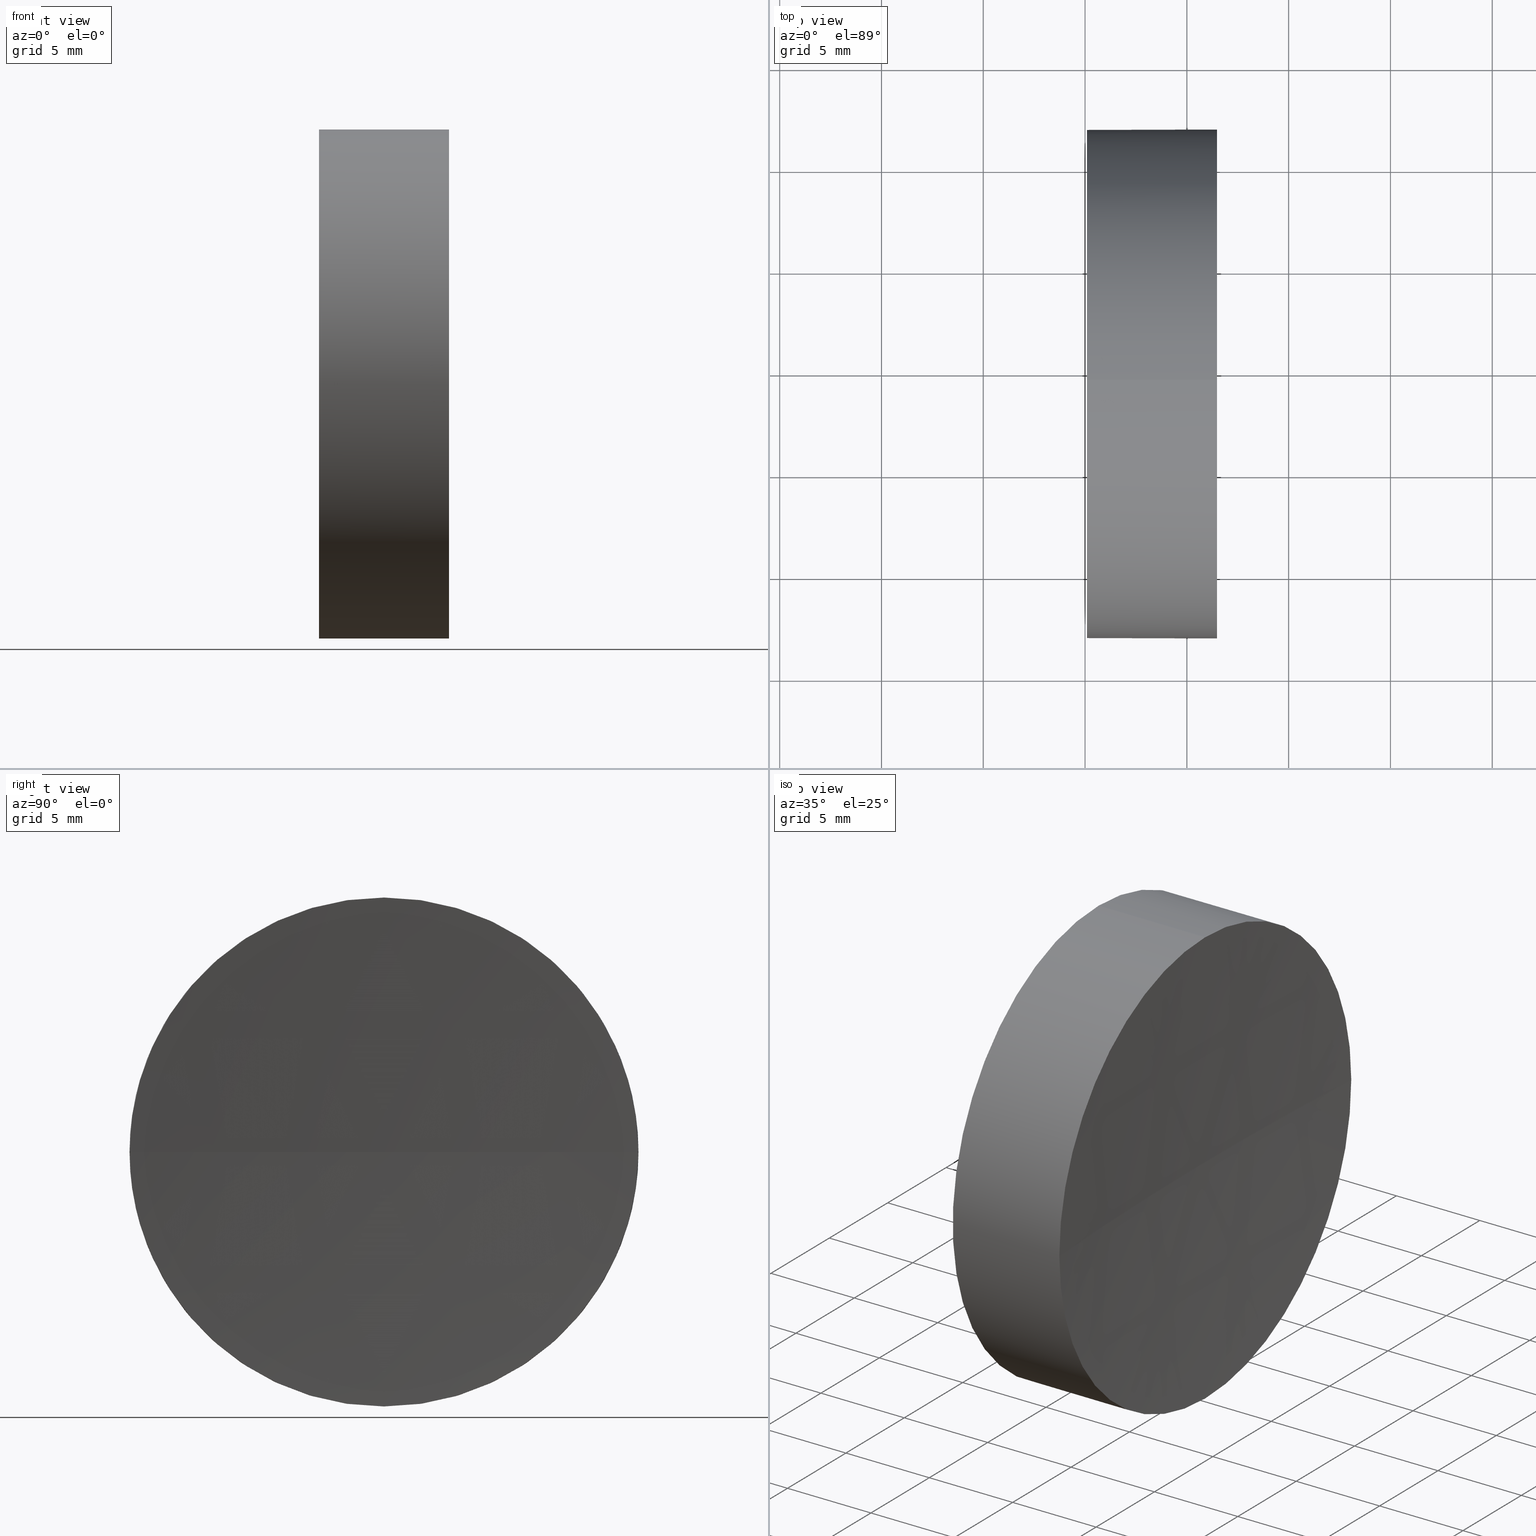
[diagram: canonical four-view strip — front | top / right | iso, engineering-drawing reading convention]
A machine part, canonical four-view strip (front | top / right | iso — engineering-drawing reading convention). The complete STEP part file that produces these views, byte-faithful:
ISO-10303-21;
HEADER;
FILE_DESCRIPTION (( 'STEP AP214' ),
    '1' );
FILE_NAME ('270027.STEP',
    '2019-07-22T07:16:51',
    ( '' ),
    ( '' ),
    'SwSTEP 2.0',
    'SolidWorks 2016',
    '' );
FILE_SCHEMA (( 'AUTOMOTIVE_DESIGN' ));
ENDSEC;

DATA;
#1 = AXIS2_PLACEMENT_3D ( 'NONE', #147, #59, #15 ) ;
#2 = CIRCLE ( 'NONE', #115, 12.50000000000002500 ) ;
#3 = APPLICATION_CONTEXT ( 'automotive_design' ) ;
#4 = SPHERICAL_SURFACE ( 'NONE', #62, 200.0000000000000000 ) ;
#5 = UNCERTAINTY_MEASURE_WITH_UNIT (LENGTH_MEASURE( 1.000000000000000100E-005 ), #73, 'distance_accuracy_value', 'NONE');
#6 = AXIS2_PLACEMENT_3D ( 'NONE', #44, #25, #159 ) ;
#7 = CARTESIAN_POINT ( 'NONE',  ( 115.0926555349195200, 69.37802112337243400, 0.0000000000000000000 ) ) ;
#8 = FACE_OUTER_BOUND ( 'NONE', #139, .T. ) ;
#9 = VERTEX_POINT ( 'NONE', #94 ) ;
#10 =( GEOMETRIC_REPRESENTATION_CONTEXT ( 3 ) GLOBAL_UNCERTAINTY_ASSIGNED_CONTEXT ( ( #108 ) ) GLOBAL_UNIT_ASSIGNED_CONTEXT ( ( #185, #81, #106 ) ) REPRESENTATION_CONTEXT ( 'NONE', 'WORKASPACE' ) );
#11 = DIRECTION ( 'NONE',  ( 0.0000000000000000000, 0.0000000000000000000, 1.000000000000000000 ) ) ;
#12 = PRESENTATION_STYLE_ASSIGNMENT (( #88 ) ) ;
#13 = VERTEX_POINT ( 'NONE', #40 ) ;
#14 = AXIS2_PLACEMENT_3D ( 'NONE', #112, #156, #129 ) ;
#15 = DIRECTION ( 'NONE',  ( 1.000000000000000000, 0.0000000000000000000, 0.0000000000000000000 ) ) ;
#16 = PRODUCT_CONTEXT ( 'NONE', #174, 'mechanical' ) ;
#17 = DIRECTION ( 'NONE',  ( 0.0000000000000000000, 0.0000000000000000000, -1.000000000000000000 ) ) ;
#18 = EDGE_CURVE ( 'NONE', #39, #109, #119, .T. ) ;
#19 = DIRECTION ( 'NONE',  ( 0.0000000000000000000, 0.0000000000000000000, 1.000000000000000000 ) ) ;
#20 = PRODUCT_RELATED_PRODUCT_CATEGORY ( 'part', '', ( #127 ) ) ;
#21 = EDGE_LOOP ( 'NONE', ( #157, #151, #180, #184 ) ) ;
#22 = CARTESIAN_POINT ( 'NONE',  ( 321.0926543351062000, 69.37802112337263300, 0.0000000000000000000 ) ) ;
#23 = AXIS2_PLACEMENT_3D ( 'NONE', #166, #103, #19 ) ;
#24 = SPHERICAL_SURFACE ( 'NONE', #92, 200.0000000000000000 ) ;
#25 = DIRECTION ( 'NONE',  ( 0.0000000000000000000, -1.224646799147353200E-016, 1.000000000000000000 ) ) ;
#26 = PRODUCT_DEFINITION ( 'δ֪', '', #181, #93 ) ;
#27 = EDGE_CURVE ( 'NONE', #54, #122, #82, .T. ) ;
#28 = DIRECTION ( 'NONE',  ( 0.0000000000000000000, 0.0000000000000000000, 1.000000000000000000 ) ) ;
#29 = CIRCLE ( 'NONE', #23, 12.50000000000002500 ) ;
#30 =( NAMED_UNIT ( * ) PLANE_ANGLE_UNIT ( ) SI_UNIT ( $, .RADIAN. ) );
#31 = FACE_OUTER_BOUND ( 'NONE', #68, .T. ) ;
#32 = EDGE_CURVE ( 'NONE', #9, #13, #2, .T. ) ;
#33 = CARTESIAN_POINT ( 'NONE',  ( 115.0926555349195200, 69.37802112337243400, -12.49999999999999600 ) ) ;
#34 = ADVANCED_FACE ( 'NONE', ( #8 ), #162, .T. ) ;
#35 = CARTESIAN_POINT ( 'NONE',  ( 321.0926543351062000, 69.37802112337263300, 0.0000000000000000000 ) ) ;
#36 = VECTOR ( 'NONE', #178, 1000.000000000000000 ) ;
#37 = SURFACE_SIDE_STYLE ('',( #98 ) ) ;
#38 = AXIS2_PLACEMENT_3D ( 'NONE', #182, #152, #80 ) ;
#39 = VERTEX_POINT ( 'NONE', #69 ) ;
#40 = CARTESIAN_POINT ( 'NONE',  ( 121.4836615517148000, 56.87802112337231400, 0.0000000000000000000 ) ) ;
#41 = VECTOR ( 'NONE', #84, 1000.000000000000000 ) ;
#42 = DIRECTION ( 'NONE',  ( -1.000000000000000000, -0.0000000000000000000, -0.0000000000000000000 ) ) ;
#43 = CARTESIAN_POINT ( 'NONE',  ( 121.0926543351061900, 69.37802112337261900, 0.0000000000000000000 ) ) ;
#44 = CARTESIAN_POINT ( 'NONE',  ( 321.0926543351062000, 69.37802112337263300, 0.0000000000000000000 ) ) ;
#45 = AXIS2_PLACEMENT_3D ( 'NONE', #125, #183, #11 ) ;
#46 = APPLICATION_PROTOCOL_DEFINITION ( 'draft international standard', 'automotive_design', 1998, #174 ) ;
#47 =( NAMED_UNIT ( * ) SI_UNIT ( $, .STERADIAN. ) SOLID_ANGLE_UNIT ( ) );
#48 = ORIENTED_EDGE ( 'NONE', *, *, #99, .F. ) ;
#49 = EDGE_LOOP ( 'NONE', ( #95, #116 ) ) ;
#50 = DIRECTION ( 'NONE',  ( 0.0000000000000000000, 0.0000000000000000000, 1.000000000000000000 ) ) ;
#51 =( GEOMETRIC_REPRESENTATION_CONTEXT ( 3 ) GLOBAL_UNCERTAINTY_ASSIGNED_CONTEXT ( ( #5 ) ) GLOBAL_UNIT_ASSIGNED_CONTEXT ( ( #73, #118, #150 ) ) REPRESENTATION_CONTEXT ( 'NONE', 'WORKASPACE' ) );
#52 = ADVANCED_FACE ( 'NONE', ( #77 ), #24, .F. ) ;
#53 = UNCERTAINTY_MEASURE_WITH_UNIT (LENGTH_MEASURE( 1.000000000000000100E-005 ), #131, 'distance_accuracy_value', 'NONE');
#54 = VERTEX_POINT ( 'NONE', #186 ) ;
#55 = CIRCLE ( 'NONE', #38, 12.49999999999999600 ) ;
#56 = DIRECTION ( 'NONE',  ( -1.000000000000000000, -0.0000000000000000000, -0.0000000000000000000 ) ) ;
#57 = FILL_AREA_STYLE_COLOUR ( '', #158 ) ;
#58 = EDGE_CURVE ( 'NONE', #122, #74, #134, .T. ) ;
#59 = DIRECTION ( 'NONE',  ( 0.0000000000000000000, 0.0000000000000000000, 1.000000000000000000 ) ) ;
#60 = ORIENTED_EDGE ( 'NONE', *, *, #78, .T. ) ;
#61 = PRESENTATION_STYLE_ASSIGNMENT (( #167 ) ) ;
#62 = AXIS2_PLACEMENT_3D ( 'NONE', #35, #90, #165 ) ;
#63 = ADVANCED_FACE ( 'NONE', ( #31 ), #105, .T. ) ;
#64 = CLOSED_SHELL ( 'NONE', ( #34, #52, #79, #63, #104 ) ) ;
#65 = CARTESIAN_POINT ( 'NONE',  ( 121.4836615517148000, 81.87802112337274700, 1.530808498934207300E-015 ) ) ;
#66 = EDGE_CURVE ( 'NONE', #54, #39, #154, .T. ) ;
#67 = ORIENTED_EDGE ( 'NONE', *, *, #58, .F. ) ;
#68 = EDGE_LOOP ( 'NONE', ( #48, #168, #89, #148, #142 ) ) ;
#69 = CARTESIAN_POINT ( 'NONE',  ( 115.0926555349195200, 69.37802112337243400, 12.49999999999999600 ) ) ;
#70 = CARTESIAN_POINT ( 'NONE',  ( 108.9851430021651000, 69.37802112337243400, 12.50000000000001100 ) ) ;
#71 = EDGE_LOOP ( 'NONE', ( #67, #176, #163, #149 ) ) ;
#72 = AXIS2_PLACEMENT_3D ( 'NONE', #22, #17, #173 ) ;
#73 =( LENGTH_UNIT ( ) NAMED_UNIT ( * ) SI_UNIT ( .MILLI., .METRE. ) );
#74 = VERTEX_POINT ( 'NONE', #43 ) ;
#75 = STYLED_ITEM ( 'NONE', ( #61 ), #179 ) ;
#76 = CARTESIAN_POINT ( 'NONE',  ( 108.9851430021651000, 69.37802112337243400, -12.50000000000001100 ) ) ;
#77 = FACE_OUTER_BOUND ( 'NONE', #21, .T. ) ;
#78 = EDGE_CURVE ( 'NONE', #122, #9, #29, .T. ) ;
#79 = ADVANCED_FACE ( 'NONE', ( #102 ), #4, .F. ) ;
#80 = DIRECTION ( 'NONE',  ( 0.0000000000000000000, 0.0000000000000000000, 1.000000000000000000 ) ) ;
#81 =( NAMED_UNIT ( * ) PLANE_ANGLE_UNIT ( ) SI_UNIT ( $, .RADIAN. ) );
#82 = CIRCLE ( 'NONE', #110, 12.50000000000002500 ) ;
#83 = MECHANICAL_DESIGN_GEOMETRIC_PRESENTATION_REPRESENTATION (  '', ( #75 ), #10 ) ;
#84 = DIRECTION ( 'NONE',  ( -1.000000000000000000, -0.0000000000000000000, -0.0000000000000000000 ) ) ;
#85 = AXIS2_PLACEMENT_3D ( 'NONE', #170, #42, #169 ) ;
#86 = FILL_AREA_STYLE ('',( #57 ) ) ;
#87 = COLOUR_RGB ( '',1.000000000000000000, 1.000000000000000000, 1.000000000000000000 ) ;
#88 = SURFACE_STYLE_USAGE ( .BOTH. , #160 ) ;
#89 = ORIENTED_EDGE ( 'NONE', *, *, #161, .T. ) ;
#90 = DIRECTION ( 'NONE',  ( 0.0000000000000000000, 0.0000000000000000000, 1.000000000000000000 ) ) ;
#91 = CIRCLE ( 'NONE', #72, 200.0000000000000000 ) ;
#92 = AXIS2_PLACEMENT_3D ( 'NONE', #96, #28, #97 ) ;
#93 = PRODUCT_DEFINITION_CONTEXT ( 'detailed design', #3, 'design' ) ;
#94 = CARTESIAN_POINT ( 'NONE',  ( 121.4836615517147900, 69.37802112337243400, -12.50000000000002500 ) ) ;
#95 = ORIENTED_EDGE ( 'NONE', *, *, #18, .T. ) ;
#96 = CARTESIAN_POINT ( 'NONE',  ( 321.0926543351062000, 69.37802112337263300, 0.0000000000000000000 ) ) ;
#97 = DIRECTION ( 'NONE',  ( 0.0000000000000000000, -1.000000000000000000, 0.0000000000000000000 ) ) ;
#98 = SURFACE_STYLE_FILL_AREA ( #107 ) ;
#99 = EDGE_CURVE ( 'NONE', #9, #109, #111, .T. ) ;
#100 = DIRECTION ( 'NONE',  ( -1.000000000000000000, -0.0000000000000000000, -0.0000000000000000000 ) ) ;
#101 = AXIS2_PLACEMENT_3D ( 'NONE', #7, #121, #138 ) ;
#102 = FACE_OUTER_BOUND ( 'NONE', #71, .T. ) ;
#103 = DIRECTION ( 'NONE',  ( -1.000000000000000000, -0.0000000000000000000, -0.0000000000000000000 ) ) ;
#104 = ADVANCED_FACE ( 'NONE', ( #175 ), #137, .F. ) ;
#105 = CYLINDRICAL_SURFACE ( 'NONE', #85, 12.50000000000001100 ) ;
#106 =( NAMED_UNIT ( * ) SI_UNIT ( $, .STERADIAN. ) SOLID_ANGLE_UNIT ( ) );
#107 = FILL_AREA_STYLE ('',( #124 ) ) ;
#108 = UNCERTAINTY_MEASURE_WITH_UNIT (LENGTH_MEASURE( 1.000000000000000100E-005 ), #185, 'distance_accuracy_value', 'NONE');
#109 = VERTEX_POINT ( 'NONE', #33 ) ;
#110 = AXIS2_PLACEMENT_3D ( 'NONE', #143, #56, #114 ) ;
#111 = LINE ( 'NONE', #76, #36 ) ;
#112 = CARTESIAN_POINT ( 'NONE',  ( 108.9851430021651000, 69.37802112337243400, 0.0000000000000000000 ) ) ;
#113 = ORIENTED_EDGE ( 'NONE', *, *, #66, .F. ) ;
#114 = DIRECTION ( 'NONE',  ( 0.0000000000000000000, 0.0000000000000000000, 1.000000000000000000 ) ) ;
#115 = AXIS2_PLACEMENT_3D ( 'NONE', #130, #145, #155 ) ;
#116 = ORIENTED_EDGE ( 'NONE', *, *, #132, .T. ) ;
#117 = PRODUCT_DEFINITION_SHAPE ( 'NONE', 'NONE',  #26 ) ;
#118 =( NAMED_UNIT ( * ) PLANE_ANGLE_UNIT ( ) SI_UNIT ( $, .RADIAN. ) );
#119 = CIRCLE ( 'NONE', #45, 12.49999999999999600 ) ;
#120 = SURFACE_STYLE_FILL_AREA ( #86 ) ;
#121 = DIRECTION ( 'NONE',  ( 1.000000000000000000, 0.0000000000000000000, 0.0000000000000000000 ) ) ;
#122 = VERTEX_POINT ( 'NONE', #65 ) ;
#123 = ORIENTED_EDGE ( 'NONE', *, *, #18, .F. ) ;
#124 = FILL_AREA_STYLE_COLOUR ( '', #87 ) ;
#125 = CARTESIAN_POINT ( 'NONE',  ( 115.0926555349195200, 69.37802112337243400, 0.0000000000000000000 ) ) ;
#126 = AXIS2_PLACEMENT_3D ( 'NONE', #135, #100, #50 ) ;
#127 = PRODUCT ( '270027', '270027', '', ( #16 ) ) ;
#128 = ORIENTED_EDGE ( 'NONE', *, *, #27, .T. ) ;
#129 = DIRECTION ( 'NONE',  ( 0.0000000000000000000, 0.0000000000000000000, 1.000000000000000000 ) ) ;
#130 = CARTESIAN_POINT ( 'NONE',  ( 121.4836615517147900, 69.37802112337243400, 0.0000000000000000000 ) ) ;
#131 =( LENGTH_UNIT ( ) NAMED_UNIT ( * ) SI_UNIT ( .MILLI., .METRE. ) );
#132 = EDGE_CURVE ( 'NONE', #109, #39, #55, .T. ) ;
#133 = ADVANCED_BREP_SHAPE_REPRESENTATION ( '270027', ( #179, #1 ), #51 ) ;
#134 = CIRCLE ( 'NONE', #6, 200.0000000000000000 ) ;
#135 = CARTESIAN_POINT ( 'NONE',  ( 121.4836615517147900, 69.37802112337243400, 0.0000000000000000000 ) ) ;
#136 = PRESENTATION_LAYER_ASSIGNMENT (  '', '', ( #75 ) ) ;
#137 = PLANE ( 'NONE',  #101 ) ;
#138 = DIRECTION ( 'NONE',  ( 0.0000000000000000000, 0.0000000000000000000, -1.000000000000000000 ) ) ;
#139 = EDGE_LOOP ( 'NONE', ( #60, #144, #123, #113, #128 ) ) ;
#140 = CIRCLE ( 'NONE', #126, 12.50000000000002500 ) ;
#141 = EDGE_CURVE ( 'NONE', #13, #74, #91, .T. ) ;
#142 = ORIENTED_EDGE ( 'NONE', *, *, #132, .F. ) ;
#143 = CARTESIAN_POINT ( 'NONE',  ( 121.4836615517147900, 69.37802112337243400, 0.0000000000000000000 ) ) ;
#144 = ORIENTED_EDGE ( 'NONE', *, *, #99, .T. ) ;
#145 = DIRECTION ( 'NONE',  ( -1.000000000000000000, -0.0000000000000000000, -0.0000000000000000000 ) ) ;
#146 = STYLED_ITEM ( 'NONE', ( #12 ), #133 ) ;
#147 = CARTESIAN_POINT ( 'NONE',  ( 0.0000000000000000000, 0.0000000000000000000, 0.0000000000000000000 ) ) ;
#148 = ORIENTED_EDGE ( 'NONE', *, *, #66, .T. ) ;
#149 = ORIENTED_EDGE ( 'NONE', *, *, #141, .T. ) ;
#150 =( NAMED_UNIT ( * ) SI_UNIT ( $, .STERADIAN. ) SOLID_ANGLE_UNIT ( ) );
#151 = ORIENTED_EDGE ( 'NONE', *, *, #58, .T. ) ;
#152 = DIRECTION ( 'NONE',  ( -1.000000000000000000, -0.0000000000000000000, -0.0000000000000000000 ) ) ;
#153 = PRESENTATION_LAYER_ASSIGNMENT (  '', '', ( #146 ) ) ;
#154 = LINE ( 'NONE', #70, #41 ) ;
#155 = DIRECTION ( 'NONE',  ( 0.0000000000000000000, 0.0000000000000000000, 1.000000000000000000 ) ) ;
#156 = DIRECTION ( 'NONE',  ( -1.000000000000000000, -0.0000000000000000000, -0.0000000000000000000 ) ) ;
#157 = ORIENTED_EDGE ( 'NONE', *, *, #78, .F. ) ;
#158 = COLOUR_RGB ( '',1.000000000000000000, 1.000000000000000000, 1.000000000000000000 ) ;
#159 = DIRECTION ( 'NONE',  ( 0.0000000000000000000, -1.000000000000000000, -1.224646799147353200E-016 ) ) ;
#160 = SURFACE_SIDE_STYLE ('',( #120 ) ) ;
#161 = EDGE_CURVE ( 'NONE', #13, #54, #140, .T. ) ;
#162 = CYLINDRICAL_SURFACE ( 'NONE', #14, 12.50000000000001100 ) ;
#163 = ORIENTED_EDGE ( 'NONE', *, *, #161, .F. ) ;
#164 = MECHANICAL_DESIGN_GEOMETRIC_PRESENTATION_REPRESENTATION (  '', ( #146 ), #172 ) ;
#165 = DIRECTION ( 'NONE',  ( 0.0000000000000000000, -1.000000000000000000, 0.0000000000000000000 ) ) ;
#166 = CARTESIAN_POINT ( 'NONE',  ( 121.4836615517147900, 69.37802112337243400, 0.0000000000000000000 ) ) ;
#167 = SURFACE_STYLE_USAGE ( .BOTH. , #37 ) ;
#168 = ORIENTED_EDGE ( 'NONE', *, *, #32, .T. ) ;
#169 = DIRECTION ( 'NONE',  ( 0.0000000000000000000, 0.0000000000000000000, 1.000000000000000000 ) ) ;
#170 = CARTESIAN_POINT ( 'NONE',  ( 108.9851430021651000, 69.37802112337243400, 0.0000000000000000000 ) ) ;
#171 = APPLICATION_PROTOCOL_DEFINITION ( 'draft international standard', 'automotive_design', 1998, #3 ) ;
#172 =( GEOMETRIC_REPRESENTATION_CONTEXT ( 3 ) GLOBAL_UNCERTAINTY_ASSIGNED_CONTEXT ( ( #53 ) ) GLOBAL_UNIT_ASSIGNED_CONTEXT ( ( #131, #30, #47 ) ) REPRESENTATION_CONTEXT ( 'NONE', 'WORKASPACE' ) );
#173 = DIRECTION ( 'NONE',  ( -1.000000000000000000, 0.0000000000000000000, 0.0000000000000000000 ) ) ;
#174 = APPLICATION_CONTEXT ( 'automotive_design' ) ;
#175 = FACE_OUTER_BOUND ( 'NONE', #49, .T. ) ;
#176 = ORIENTED_EDGE ( 'NONE', *, *, #27, .F. ) ;
#177 = SHAPE_DEFINITION_REPRESENTATION ( #117, #133 ) ;
#178 = DIRECTION ( 'NONE',  ( -1.000000000000000000, -0.0000000000000000000, -0.0000000000000000000 ) ) ;
#179 = MANIFOLD_SOLID_BREP ( '��ת1', #64 ) ;
#180 = ORIENTED_EDGE ( 'NONE', *, *, #141, .F. ) ;
#181 = PRODUCT_DEFINITION_FORMATION_WITH_SPECIFIED_SOURCE ( '�κ�', '', #127, .NOT_KNOWN. ) ;
#182 = CARTESIAN_POINT ( 'NONE',  ( 115.0926555349195200, 69.37802112337243400, 0.0000000000000000000 ) ) ;
#183 = DIRECTION ( 'NONE',  ( -1.000000000000000000, -0.0000000000000000000, -0.0000000000000000000 ) ) ;
#184 = ORIENTED_EDGE ( 'NONE', *, *, #32, .F. ) ;
#185 =( LENGTH_UNIT ( ) NAMED_UNIT ( * ) SI_UNIT ( .MILLI., .METRE. ) );
#186 = CARTESIAN_POINT ( 'NONE',  ( 121.4836615517147900, 69.37802112337243400, 12.50000000000002500 ) ) ;
ENDSEC;
END-ISO-10303-21;
